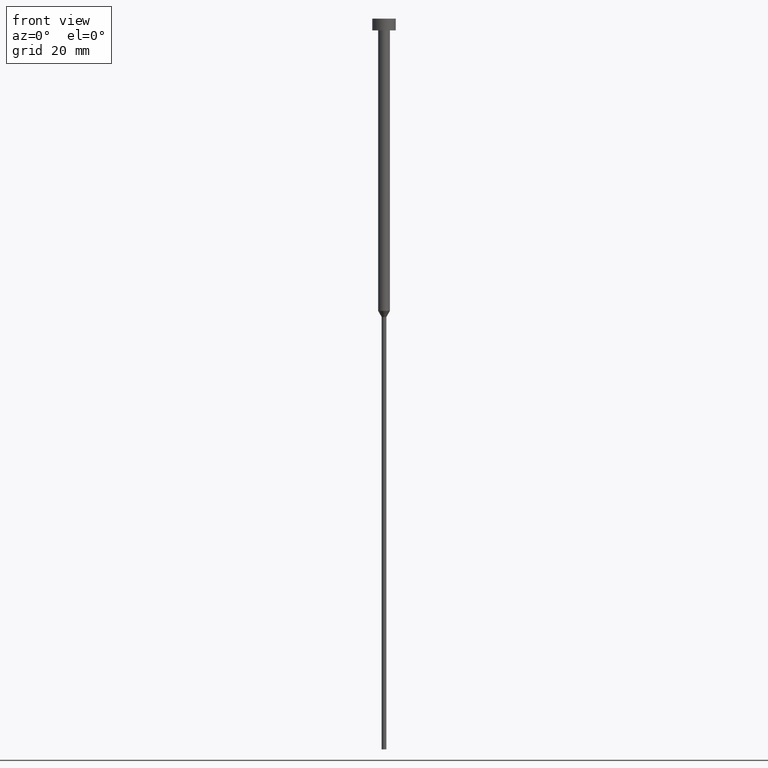
[diagram: clean part render]
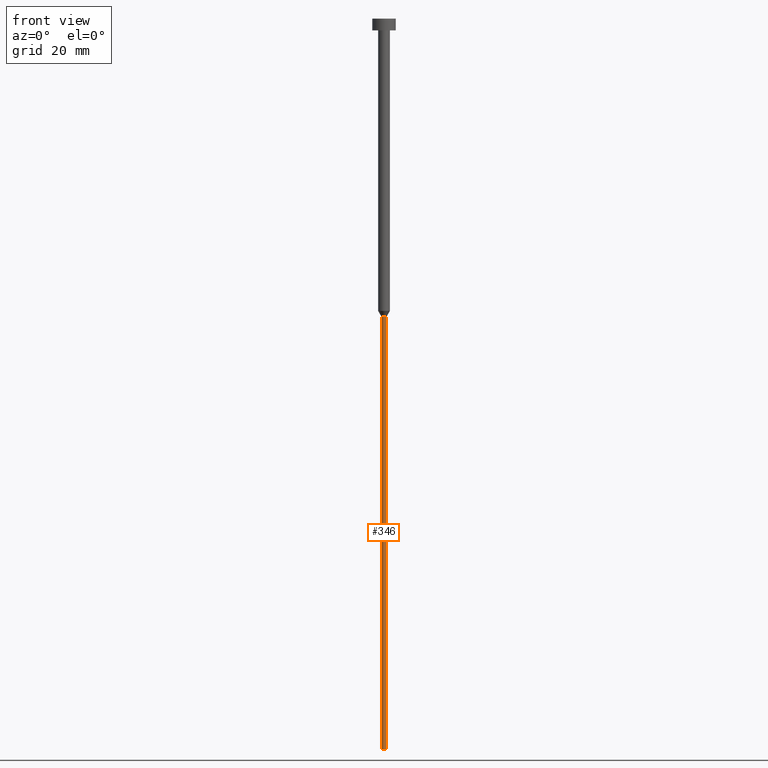
[diagram: same view with one face highlighted and labeled with its STEP entity id]
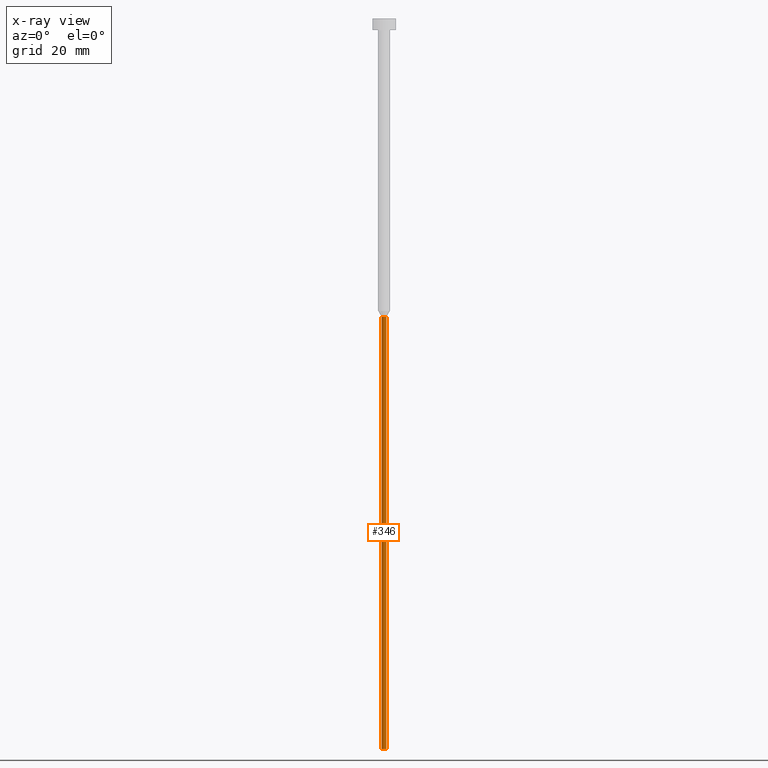
[diagram: x-ray of the same camera — body ghosted, the highlighted face saturated]
A machine part, front view. The second image highlights one B-rep face of the part: STEP entity #346.
The next image is the same camera in x-ray: the body ghosted, the highlighted face saturated — about 0% of this face is hidden behind the body in this view.
In plain terms, the highlighted cylindrical surface (edge-blend (fillet) strip) has radius 0.4 mm, axis along (-0, -0, 1).
Its self-contained STEP definition (entity closure, byte-faithful):
#2 = VECTOR ( 'NONE', #73, 1000.000000000000000 ) ;
#12 = CARTESIAN_POINT ( 'NONE',  ( -0.4000000000000000777, 4.898587196589413692E-17, -125.0000000000000000 ) ) ;
#31 = CARTESIAN_POINT ( 'NONE',  ( -0.3999999999999999667, 4.898587196589412459E-17, -51.03923048454132783 ) ) ;
#35 = EDGE_CURVE ( 'NONE', #233, #67, #207, .T. ) ;
#49 = DIRECTION ( 'NONE',  ( 1.000000000000000000, 0.000000000000000000, 0.000000000000000000 ) ) ;
#50 = CARTESIAN_POINT ( 'NONE',  ( 0.000000000000000000, 0.000000000000000000, -125.0000000000000000 ) ) ;
#54 = CARTESIAN_POINT ( 'NONE',  ( 0.3999999999999999667, 0.000000000000000000, 0.000000000000000000 ) ) ;
#56 = DIRECTION ( 'NONE',  ( -0.000000000000000000, -0.000000000000000000, 1.000000000000000000 ) ) ;
#67 = VERTEX_POINT ( 'NONE', #212 ) ;
#73 = DIRECTION ( 'NONE',  ( -0.000000000000000000, -0.000000000000000000, 1.000000000000000000 ) ) ;
#84 = EDGE_LOOP ( 'NONE', ( #87, #287, #146, #127 ) ) ;
#87 = ORIENTED_EDGE ( 'NONE', *, *, #236, .F. ) ;
#115 = VERTEX_POINT ( 'NONE', #31 ) ;
#124 = CYLINDRICAL_SURFACE ( 'NONE', #166, 0.3999999999999999667 ) ;
#127 = ORIENTED_EDGE ( 'NONE', *, *, #171, .F. ) ;
#146 = ORIENTED_EDGE ( 'NONE', *, *, #274, .T. ) ;
#154 = DIRECTION ( 'NONE',  ( 1.000000000000000000, 0.000000000000000000, 0.000000000000000000 ) ) ;
#162 = AXIS2_PLACEMENT_3D ( 'NONE', #355, #204, #154 ) ;
#166 = AXIS2_PLACEMENT_3D ( 'NONE', #190, #308, #205 ) ;
#171 = EDGE_CURVE ( 'NONE', #115, #202, #271, .T. ) ;
#188 = DIRECTION ( 'NONE',  ( -0.000000000000000000, -0.000000000000000000, 1.000000000000000000 ) ) ;
#190 = CARTESIAN_POINT ( 'NONE',  ( 0.000000000000000000, 0.000000000000000000, 0.000000000000000000 ) ) ;
#202 = VERTEX_POINT ( 'NONE', #295 ) ;
#204 = DIRECTION ( 'NONE',  ( -0.000000000000000000, -0.000000000000000000, 1.000000000000000000 ) ) ;
#205 = DIRECTION ( 'NONE',  ( 1.000000000000000000, 0.000000000000000000, 0.000000000000000000 ) ) ;
#207 = CIRCLE ( 'NONE', #281, 0.4000000000000000222 ) ;
#208 = LINE ( 'NONE', #54, #2 ) ;
#212 = CARTESIAN_POINT ( 'NONE',  ( 0.4000000000000000222, 0.000000000000000000, -125.0000000000000000 ) ) ;
#219 = LINE ( 'NONE', #337, #312 ) ;
#233 = VERTEX_POINT ( 'NONE', #12 ) ;
#236 = EDGE_CURVE ( 'NONE', #233, #115, #219, .T. ) ;
#271 = CIRCLE ( 'NONE', #162, 0.3999999999999999667 ) ;
#273 = FACE_OUTER_BOUND ( 'NONE', #84, .T. ) ;
#274 = EDGE_CURVE ( 'NONE', #67, #202, #208, .T. ) ;
#281 = AXIS2_PLACEMENT_3D ( 'NONE', #50, #188, #49 ) ;
#287 = ORIENTED_EDGE ( 'NONE', *, *, #35, .T. ) ;
#295 = CARTESIAN_POINT ( 'NONE',  ( 0.3999999999999999667, 0.000000000000000000, -51.03923048454132783 ) ) ;
#308 = DIRECTION ( 'NONE',  ( -0.000000000000000000, -0.000000000000000000, 1.000000000000000000 ) ) ;
#312 = VECTOR ( 'NONE', #56, 1000.000000000000000 ) ;
#337 = CARTESIAN_POINT ( 'NONE',  ( -0.3999999999999999667, 4.898587196589412459E-17, 0.000000000000000000 ) ) ;
#346 = ADVANCED_FACE ( 'NONE', ( #273 ), #124, .T. ) ;
#355 = CARTESIAN_POINT ( 'NONE',  ( 0.000000000000000000, 0.000000000000000000, -51.03923048454132783 ) ) ;